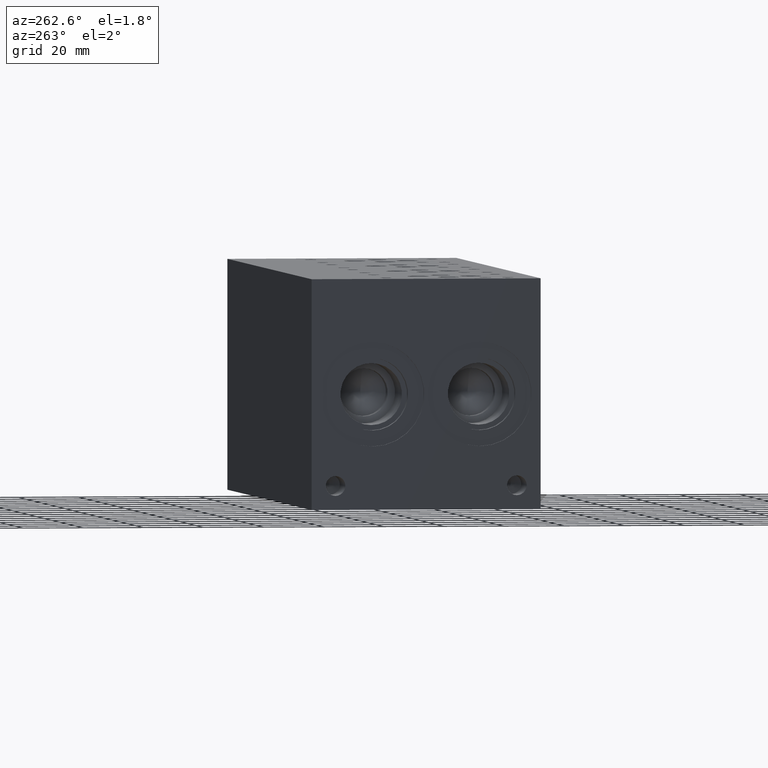
[diagram: clean part render]
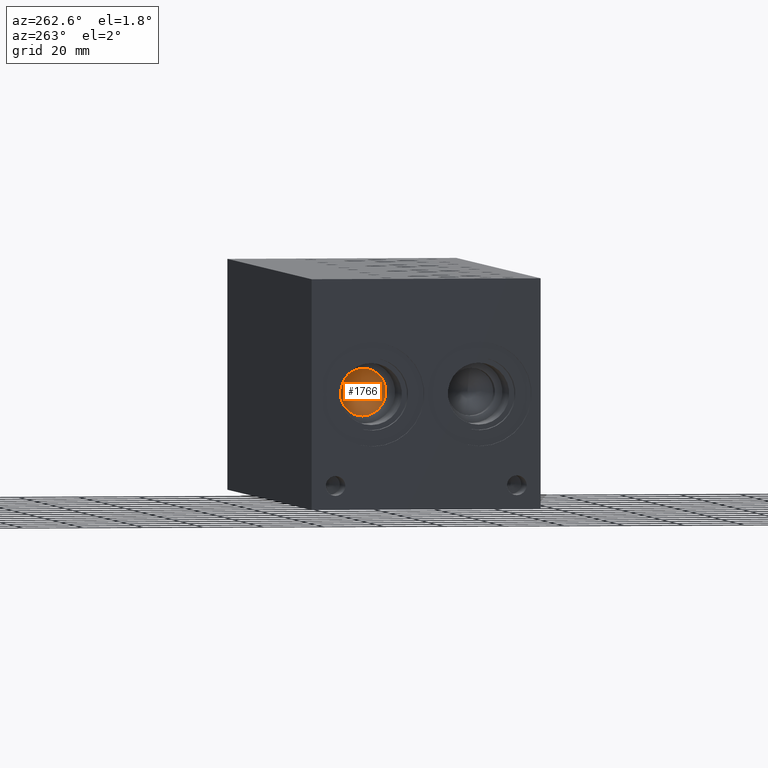
[diagram: same view with one face highlighted and labeled with its STEP entity id]
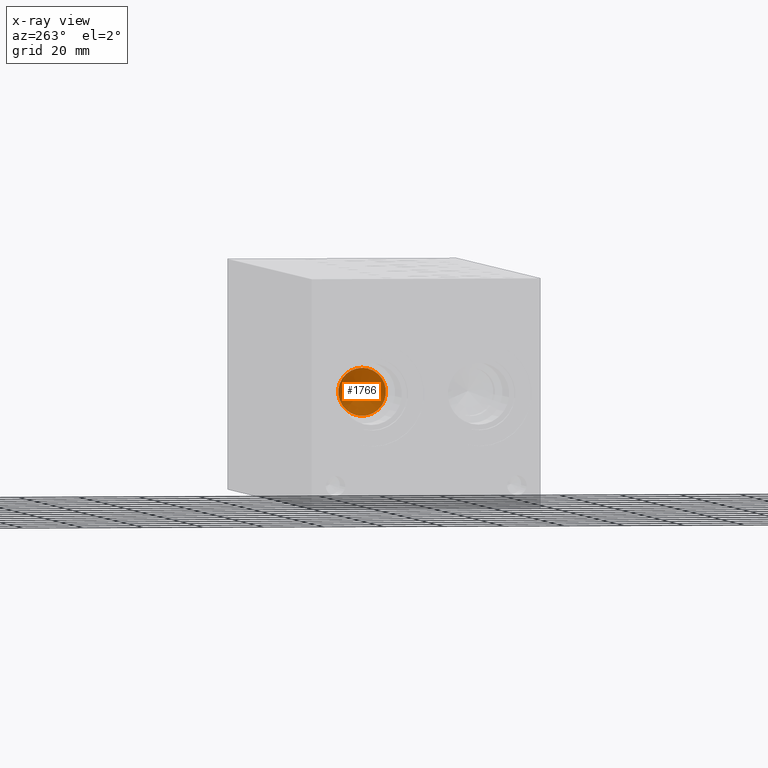
[diagram: x-ray of the same camera — body ghosted, the highlighted face saturated]
A machine part, auxiliary view. The second image highlights one B-rep face of the part: STEP entity #1766.
The next image is the same camera in x-ray: the body ghosted, the highlighted face saturated — about 0% of this face is hidden behind the body in this view.
In plain terms, the highlighted conical surface has half-angle 60 deg.
Its self-contained STEP definition (entity closure, byte-faithful):
#1750=CARTESIAN_POINT('',(28.986758899999998,55.956200000000003,38.100000000000009));
#1751=DIRECTION('',(-1.0,0.0,0.0));
#1752=DIRECTION('',(0.0,0.0,1.0));
#1753=AXIS2_PLACEMENT_3D('',#1750,#1751,#1752);
#1754=CONICAL_SURFACE('',#1753,3.968749999999996,59.999999792612627);
#1755=CARTESIAN_POINT('',(26.695399999999999,55.956200000000003,46.037500000000009));
#1756=VERTEX_POINT('',#1755);
#1757=CARTESIAN_POINT('',(26.695399999999999,55.956200000000003,38.100000000000009));
#1758=DIRECTION('',(-1.0,0.0,0.0));
#1759=DIRECTION('',(0.0,0.0,1.0));
#1760=AXIS2_PLACEMENT_3D('',#1757,#1758,#1759);
#1761=CIRCLE('',#1760,7.937500000000002);
#1762=EDGE_CURVE('',#1756,#1756,#1761,.T.);
#1763=ORIENTED_EDGE('',*,*,#1762,.T.);
#1764=EDGE_LOOP('',(#1763));
#1765=FACE_OUTER_BOUND('',#1764,.T.);
#1766=ADVANCED_FACE('',(#1765),#1754,.F.);